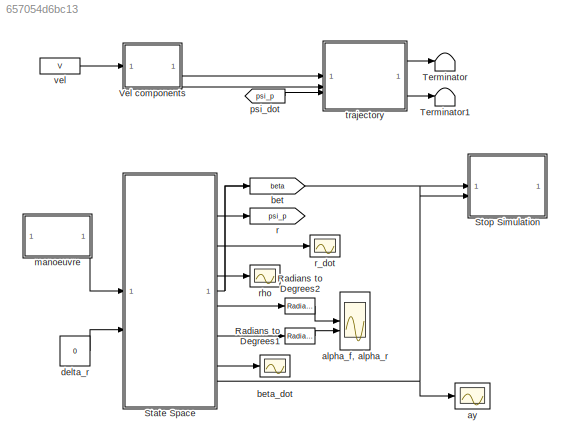
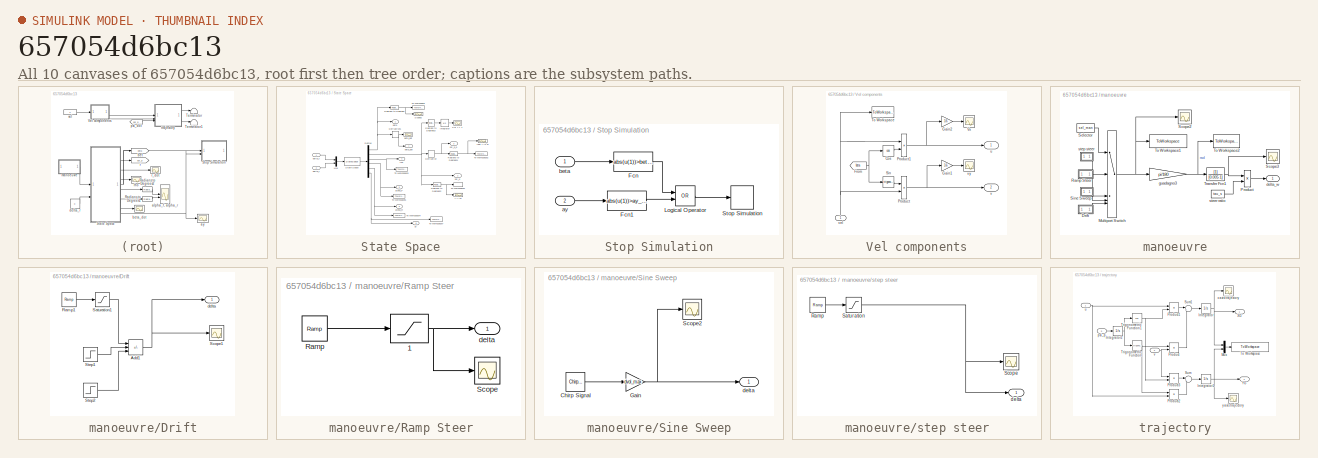
[diagram: thumbnail index - all 10 canvases of the model, root first then tree order]
MODEL slx_657054d6bc13
KIND model
CONFIG AbsTol = auto
CONFIG EnableMultiTasking = on
CONFIG FixedStep = 0.0001
CONFIG MaxStep = auto
CONFIG MinStep = auto
CONFIG RelTol = 1e-3
CONFIG SampleTimeConstraint = Unconstrained
CONFIG SolverName = ode4
CONFIG StartTime = 0.0
CONFIG StopTime = t_end_sim
BLOCK [Reference] Radians to Degrees1  REF=simulink_extras/Transformations/Radians
to Degrees
  SourceBlock = simulink_extras/Transformations/Radians\nto Degrees
  SourceType = RadiansToDegrees
BLOCK [Reference] Radians to Degrees2  REF=simulink_extras/Transformations/Radians
to Degrees
  SourceBlock = simulink_extras/Transformations/Radians\nto Degrees
  SourceType = RadiansToDegrees
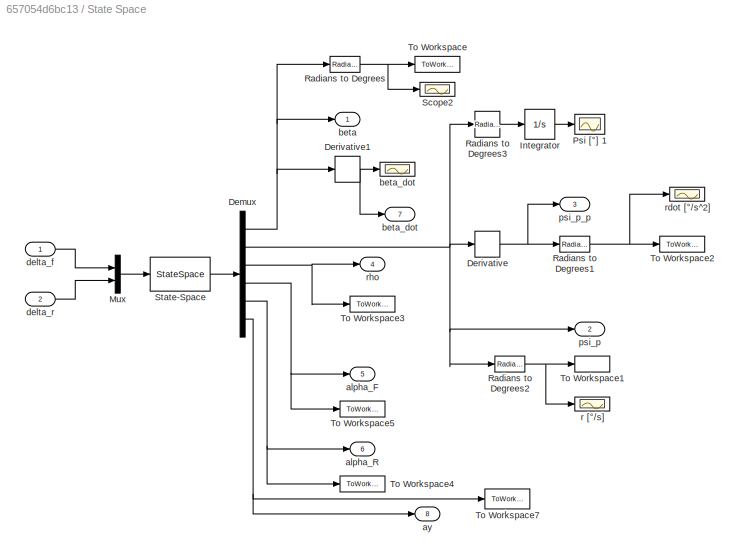
BLOCK [SubSystem] State Space
BLOCK [Demux] State Space/Demux
  Outputs = 6
BLOCK [Derivative] State Space/Derivative
BLOCK [Derivative] State Space/Derivative1
BLOCK [Integrator] State Space/Integrator
BLOCK [Mux] State Space/Mux
  DisplayOption = bar
  Inputs = 2
BLOCK [Scope] State Space/Psi [°] 1
  Floating = off
  NumInputPorts = 1
  ScopeSpecificationString = Simulink.scopes.TimeScopeBlockCfg('CurrentConfiguration', extmgr.ConfigurationSet(extmgr.Configuration('Core','General UI',true),extmgr.Configuration('Core','Source UI',true),extmgr.Configuration('Sources','WiredSimulink',true,'DataLogging',true,'DataLoggingVariableName','Psi','DataLoggingSaveFormat','Array','DataLoggingDecimation','1','DataLoggingDecimateData',true),extmgr.Configuration('Visuals'...<+1708ch>
BLOCK [Reference] State Space/Radians to Degrees  REF=simulink_extras/Transformations/Radians
to Degrees
  SourceBlock = simulink_extras/Transformations/Radians\nto Degrees
  SourceType = RadiansToDegrees
BLOCK [Reference] State Space/Radians to Degrees1  REF=simulink_extras/Transformations/Radians
to Degrees
  SourceBlock = simulink_extras/Transformations/Radians\nto Degrees
  SourceType = RadiansToDegrees
BLOCK [Reference] State Space/Radians to Degrees2  REF=simulink_extras/Transformations/Radians
to Degrees
  SourceBlock = simulink_extras/Transformations/Radians\nto Degrees
  SourceType = RadiansToDegrees
BLOCK [Reference] State Space/Radians to Degrees3  REF=simulink_extras/Transformations/Radians
to Degrees
  SourceBlock = simulink_extras/Transformations/Radians\nto Degrees
  SourceType = RadiansToDegrees
BLOCK [Scope] State Space/Scope2
  Floating = off
  NumInputPorts = 1
  ScopeSpecificationString = Simulink.scopes.TimeScopeBlockCfg('CurrentConfiguration', extmgr.ConfigurationSet(extmgr.Configuration('Core','General UI',true),extmgr.Configuration('Core','Source UI',true),extmgr.Configuration('Sources','WiredSimulink',true,'DataLoggingVariableName','Beta','DataLogging',true,'DataLoggingSaveFormat','Array'),extmgr.Configuration('Visuals','Time Domain',true,'SerializedDisplays',{struct('MinYLimR...<+1472ch>
BLOCK [StateSpace] State Space/State-Space
  A = A_sim
  B = B_sim
  C = C_sim
  D = D_sim
  InitialCondition = 0
BLOCK [ToWorkspace] State Space/To Workspace
  FixptAsFi = on
  MaxDataPoints = inf
  SampleTime = -1
  SaveFormat = Timeseries
  VariableName = beta
BLOCK [ToWorkspace] State Space/To Workspace1
  FixptAsFi = on
  MaxDataPoints = inf
  SampleTime = -1
  SaveFormat = Timeseries
  VariableName = r
BLOCK [ToWorkspace] State Space/To Workspace2
  FixptAsFi = on
  MaxDataPoints = inf
  SampleTime = -1
  SaveFormat = Timeseries
  VariableName = rdot
BLOCK [ToWorkspace] State Space/To Workspace3
  FixptAsFi = on
  MaxDataPoints = inf
  SampleTime = -1
  SaveFormat = Timeseries
  VariableName = ro
BLOCK [ToWorkspace] State Space/To Workspace4
  FixptAsFi = on
  MaxDataPoints = inf
  SampleTime = -1
  SaveFormat = Timeseries
  VariableName = alfaR
BLOCK [ToWorkspace] State Space/To Workspace5
  FixptAsFi = on
  MaxDataPoints = inf
  SampleTime = -1
  SaveFormat = Timeseries
  VariableName = alfaF
BLOCK [ToWorkspace] State Space/To Workspace7
  FixptAsFi = on
  MaxDataPoints = inf
  SampleTime = -1
  Save2DSignal = 2-D array (concatenate along first dimension)
  SaveFormat = Timeseries
  VariableName = ay
BLOCK [Outport] State Space/alpha_F
  Port = 5
  VectorParamsAs1DForOutWhenUnconnected = off
BLOCK [Outport] State Space/alpha_R
  Port = 6
  VectorParamsAs1DForOutWhenUnconnected = off
BLOCK [Outport] State Space/ay
  Port = 8
  VectorParamsAs1DForOutWhenUnconnected = off
BLOCK [Outport] State Space/beta
  VectorParamsAs1DForOutWhenUnconnected = off
BLOCK [Scope] State Space/beta_dot
  Floating = off
  NumInputPorts = 1
  ScopeSpecificationString = Simulink.scopes.TimeScopeBlockCfg('CurrentConfiguration', extmgr.ConfigurationSet(extmgr.Configuration('Core','General UI',true),extmgr.Configuration('Core','Source UI',true),extmgr.Configuration('Sources','WiredSimulink',true,'DataLoggingVariableName','beta_dot','DataLogging',true,'DataLoggingSaveFormat','Array'),extmgr.Configuration('Visuals','Time Domain',true,'SerializedDisplays',{struct('MinY...<+1471ch>
BLOCK [Outport] State Space/beta_dot 
  Port = 7
  VectorParamsAs1DForOutWhenUnconnected = off
BLOCK [Inport] State Space/delta_f
BLOCK [Inport] State Space/delta_r
  Port = 2
BLOCK [Outport] State Space/psi_p
  Port = 2
  VectorParamsAs1DForOutWhenUnconnected = off
BLOCK [Outport] State Space/psi_p_p
  Port = 3
  VectorParamsAs1DForOutWhenUnconnected = off
BLOCK [Scope] State Space/r [°//s]
  Floating = off
  NumInputPorts = 1
  ScopeSpecificationString = Simulink.scopes.TimeScopeBlockCfg('CurrentConfiguration', extmgr.ConfigurationSet(extmgr.Configuration('Core','General UI',true),extmgr.Configuration('Core','Source UI',true),extmgr.Configuration('Sources','WiredSimulink',true,'DataLoggingVariableName','psi_dot','DataLogging',true,'DataLoggingSaveFormat','Array'),extmgr.Configuration('Visuals','Time Domain',true,'SerializedDisplays',{struct('MinYL...<+1465ch>
BLOCK [Scope] State Space/rdot [°//s^2]
  Floating = off
  NumInputPorts = 1
  ScopeSpecificationString = Simulink.scopes.TimeScopeBlockCfg('CurrentConfiguration', extmgr.ConfigurationSet(extmgr.Configuration('Core','General UI',true),extmgr.Configuration('Core','Source UI',true),extmgr.Configuration('Sources','WiredSimulink',true,'DataLoggingVariableName','ScopeData4'),extmgr.Configuration('Visuals','Time Domain',true,'SerializedDisplays',{struct('MinYLimReal','-6.92357','MaxYLimReal','62.31216','YLa...<+1418ch>
BLOCK [Outport] State Space/rho
  Port = 4
  VectorParamsAs1DForOutWhenUnconnected = off
BLOCK [SubSystem] Stop Simulation
BLOCK [Fcn] Stop Simulation/Fcn
  Expr = abs(u(1))>beta_max
BLOCK [Fcn] Stop Simulation/Fcn1
  Expr = abs(u(1))>ay_max
BLOCK [Logic] Stop Simulation/Logical Operator
  AllPortsSameDT = off
  Operator = OR
  OutDataTypeStr = boolean
BLOCK [Stop] Stop Simulation/Stop Simulation
BLOCK [Inport] Stop Simulation/ay
  Port = 2
BLOCK [Inport] Stop Simulation/beta
BLOCK [Terminator] Terminator
BLOCK [Terminator] Terminator1
BLOCK [SubSystem] Vel components
BLOCK [Trigonometry] Vel components/Cos
  Operator = cos
BLOCK [From] Vel components/From
  GotoTag = beta
  TagVisibility = global
BLOCK [Gain] Vel components/Gain1
  Gain = 3.6
BLOCK [Gain] Vel components/Gain2
  Gain = 3.6
BLOCK [Product] Vel components/Product
BLOCK [Product] Vel components/Product1
BLOCK [Trigonometry] Vel components/Sin
BLOCK [ToWorkspace] Vel components/To Workspace
  FixptAsFi = on
  MaxDataPoints = inf
  SampleTime = -1
  SaveFormat = Timeseries
  VariableName = simout
BLOCK [Scope] Vel components/Vx
  Floating = off
  NumInputPorts = 1
  ScopeSpecificationString = Simulink.scopes.TimeScopeBlockCfg('CurrentConfiguration', extmgr.ConfigurationSet(extmgr.Configuration('Core','General UI',true),extmgr.Configuration('Core','Source UI',true),extmgr.Configuration('Sources','WiredSimulink',true,'DataLoggingVariableName','ScopeData3'),extmgr.Configuration('Visuals','Time Domain',true,'SerializedDisplays',{struct('MinYLimReal','39.99883','MaxYLimReal','40.00013','YLa...<+1395ch>
BLOCK [Outport] Vel components/u
  VectorParamsAs1DForOutWhenUnconnected = off
BLOCK [Outport] Vel components/v
  Port = 2
  VectorParamsAs1DForOutWhenUnconnected = off
BLOCK [Inport] Vel components/vel
  NameLocation = right
BLOCK [Scope] Vel components/vy
  Floating = off
  NumInputPorts = 1
  ScopeSpecificationString = Simulink.scopes.TimeScopeBlockCfg('CurrentConfiguration', extmgr.ConfigurationSet(extmgr.Configuration('Core','General UI',true),extmgr.Configuration('Core','Source UI',true),extmgr.Configuration('Sources','WiredSimulink',true,'DataLoggingVariableName','v','DataLogging',true,'DataLoggingSaveFormat','Array'),extmgr.Configuration('Visuals','Time Domain',true,'SerializedDisplays',{struct('MinYLimReal...<+1431ch>
BLOCK [Scope] alpha_f, alpha_r
  Floating = off
  NumInputPorts = 2
  ScopeSpecificationString = Simulink.scopes.TimeScopeBlockCfg('CurrentConfiguration', extmgr.ConfigurationSet(extmgr.Configuration('Core','General UI',true),extmgr.Configuration('Core','Source UI',true),extmgr.Configuration('Sources','WiredSimulink',true,'DataLoggingVariableName','ScopeData1'),extmgr.Configuration('Visuals','Time Domain',true,'SerializedDisplays',{struct('MinYLimReal','-0.06568','MaxYLimReal','0.59113','YLab...<+1384ch>
BLOCK [Scope] ay 
  Floating = off
  NumInputPorts = 1
  ScopeSpecificationString = Simulink.scopes.TimeScopeBlockCfg('CurrentConfiguration', extmgr.ConfigurationSet(extmgr.Configuration('Core','General UI',true),extmgr.Configuration('Core','Source UI',true),extmgr.Configuration('Sources','WiredSimulink',true,'DataLoggingVariableName','a_y','DataLogging',true,'DataLoggingSaveFormat','Array'),extmgr.Configuration('Visuals','Time Domain',true,'SerializedDisplays',{struct('MinYLimRe...<+1474ch>
BLOCK [Goto] bet
  GotoTag = beta
  TagVisibility = global
BLOCK [Scope] beta_dot
  Floating = off
  NumInputPorts = 1
  ScopeSpecificationString = Simulink.scopes.TimeScopeBlockCfg('CurrentConfiguration', extmgr.ConfigurationSet(extmgr.Configuration('Core','General UI',true),extmgr.Configuration('Core','Source UI',true),extmgr.Configuration('Sources','WiredSimulink',true,'DataLoggingVariableName','ScopeData1'),extmgr.Configuration('Visuals','Time Domain',true,'SerializedDisplays',{struct('MinYLimReal','-0.01179','MaxYLimReal','0.06073','YLab...<+1397ch>
BLOCK [Constant] delta_r
  Value = 0
BLOCK [SubSystem] manoeuvre
BLOCK [SubSystem] manoeuvre/Drift
BLOCK [Sum] manoeuvre/Drift/Add1
  IconShape = rectangular
  Inputs = +-+
BLOCK [Reference] manoeuvre/Drift/Ramp1  REF=simulink/Sources/Ramp
  SourceBlock = simulink/Sources/Ramp
  SourceType = Ramp
BLOCK [Saturate] manoeuvre/Drift/Saturation1
  LowerLimit = 0
  UpperLimit = dvol_drift1
BLOCK [Scope] manoeuvre/Drift/Scope1
  Floating = off
  NumInputPorts = 1
  ScopeSpecificationString = Simulink.scopes.TimeScopeBlockCfg('CurrentConfiguration', extmgr.ConfigurationSet(extmgr.Configuration('Core','General UI',true),extmgr.Configuration('Core','Source UI',true),extmgr.Configuration('Sources','WiredSimulink',true,'DataLoggingVariableName','ScopeData3'),extmgr.Configuration('Visuals','Time Domain',true,'SerializedDisplays',{struct('MinYLimReal','-1.00000','MaxYLimReal','1.00000','YLab...<+1363ch>
BLOCK [Step] manoeuvre/Drift/Step1
  After = dvol_drift2
  SampleTime = 0
  Time = t_drift_cs_1
BLOCK [Step] manoeuvre/Drift/Step2
  After = dvol_drift3
  SampleTime = 0
  Time = t_drift_cs_2
BLOCK [Outport] manoeuvre/Drift/delta
  VectorParamsAs1DForOutWhenUnconnected = off
BLOCK [MultiPortSwitch] manoeuvre/Multiport Switch
  InputSameDT = off
  Inputs = 4
  SaturateOnIntegerOverflow = off
BLOCK [Product] manoeuvre/Product
  Inputs = */
  RndMeth = Zero
BLOCK [SubSystem] manoeuvre/Ramp Steer
BLOCK [Saturate] manoeuvre/Ramp Steer/  1
  LowerLimit = -delta_vol_max_ramp
  UpperLimit = delta_vol_max_ramp
BLOCK [Reference] manoeuvre/Ramp Steer/Ramp  REF=simulink/Sources/Ramp
  SourceBlock = simulink/Sources/Ramp
  SourceType = Ramp
BLOCK [Scope] manoeuvre/Ramp Steer/Scope
  Floating = off
  NumInputPorts = 1
  ScopeSpecificationString = Simulink.scopes.TimeScopeBlockCfg('CurrentConfiguration', extmgr.ConfigurationSet(extmgr.Configuration('Core','General UI',true),extmgr.Configuration('Core','Source UI',true),extmgr.Configuration('Sources','WiredSimulink',true,'DataLoggingVariableName','ScopeData1'),extmgr.Configuration('Visuals','Time Domain',true,'SerializedDisplays',{struct('MinYLimReal','-1.25','MaxYLimReal','11.25','YLabelRea...<+1379ch>
BLOCK [Outport] manoeuvre/Ramp Steer/delta
  VectorParamsAs1DForOutWhenUnconnected = off
BLOCK [Scope] manoeuvre/Scope2
  Floating = off
  NumInputPorts = 1
  ScopeSpecificationString = Simulink.scopes.TimeScopeBlockCfg('CurrentConfiguration', extmgr.ConfigurationSet(extmgr.Configuration('Core','General UI',true),extmgr.Configuration('Core','Source UI',true),extmgr.Configuration('Sources','WiredSimulink',true,'DataLoggingVariableName','delta_s','DataLogging',true,'DataLoggingSaveFormat','Array'),extmgr.Configuration('Visuals','Time Domain',true,'SerializedDisplays',{struct('MinYL...<+1485ch>
BLOCK [Scope] manoeuvre/Scope3
  Floating = off
  NumInputPorts = 1
  ScopeSpecificationString = Simulink.scopes.TimeScopeBlockCfg('CurrentConfiguration', extmgr.ConfigurationSet(extmgr.Configuration('Core','General UI',true),extmgr.Configuration('Core','Source UI',true),extmgr.Configuration('Sources','WiredSimulink',true,'DataLoggingVariableName','delta_rad','DataLogging',true,'DataLoggingSaveFormat','Array'),extmgr.Configuration('Visuals','Time Domain',true,'SerializedDisplays',{struct('Min...<+1451ch>
BLOCK [Constant] manoeuvre/Selector
  Value = sel_man
BLOCK [SubSystem] manoeuvre/Sine Sweep
BLOCK [Reference] manoeuvre/Sine Sweep/Chirp Signal  REF=simulink/Sources/Chirp Signal
  SourceBlock = simulink/Sources/Chirp Signal
  SourceType = chirp
BLOCK [Gain] manoeuvre/Sine Sweep/Gain
  Gain = dvol_max
BLOCK [Scope] manoeuvre/Sine Sweep/Scope2
  Floating = off
  NumInputPorts = 1
  ScopeSpecificationString = Simulink.scopes.TimeScopeBlockCfg('CurrentConfiguration', extmgr.ConfigurationSet(extmgr.Configuration('Core','General UI',true),extmgr.Configuration('Core','Source UI',true),extmgr.Configuration('Sources','WiredSimulink',true,'DataLoggingVariableName','ScopeData2'),extmgr.Configuration('Visuals','Time Domain',true,'SerializedDisplays',{struct('MinYLimReal','-25.00000','MaxYLimReal','25.00000','YL...<+1398ch>
BLOCK [Outport] manoeuvre/Sine Sweep/delta
  InitialOutput = 0
  NameLocation = top
  VectorParamsAs1DForOutWhenUnconnected = off
BLOCK [ToWorkspace] manoeuvre/To Workspace1
  FixptAsFi = on
  MaxDataPoints = inf
  SampleTime = -1
  SaveFormat = Timeseries
  VariableName = delta_steer
BLOCK [ToWorkspace] manoeuvre/To Workspace2
  FixptAsFi = on
  MaxDataPoints = inf
  SampleTime = -1
  SaveFormat = Timeseries
  VariableName = delta_radians
BLOCK [TransferFcn] manoeuvre/Transfer Fcn1
  Denominator = [0.005 1]
BLOCK [Outport] manoeuvre/delta_w
  VectorParamsAs1DForOutWhenUnconnected = off
BLOCK [Gain] manoeuvre/guadagno3
  Gain = pi/180
  OutDataTypeStr = Inherit: Same as input
  ParamDataTypeStr = Inherit: Same as input
  SaturateOnIntegerOverflow = on
BLOCK [Constant] manoeuvre/steer ratio 
  Value = tau_s
BLOCK [SubSystem] manoeuvre/step steer
BLOCK [Reference] manoeuvre/step steer/Ramp  REF=simulink/Sources/Ramp
  SourceBlock = simulink/Sources/Ramp
  SourceType = Ramp
BLOCK [Saturate] manoeuvre/step steer/Saturation
  LowerLimit = 0
  UpperLimit = dvol_max
BLOCK [Scope] manoeuvre/step steer/Scope
  Floating = off
  NumInputPorts = 1
  ScopeSpecificationString = Simulink.scopes.TimeScopeBlockCfg('CurrentConfiguration', extmgr.ConfigurationSet(extmgr.Configuration('Core','General UI',true),extmgr.Configuration('Core','Source UI',true),extmgr.Configuration('Sources','WiredSimulink',true,'DataLoggingVariableName','ScopeData2'),extmgr.Configuration('Visuals','Time Domain',true,'SerializedDisplays',{struct('MinYLimReal','-1.25','MaxYLimReal','11.25','YLabelRea...<+1386ch>
BLOCK [Outport] manoeuvre/step steer/delta
  VectorParamsAs1DForOutWhenUnconnected = off
BLOCK [From] psi_dot
  GotoTag = psi_p
  TagVisibility = global
BLOCK [Goto] r
  GotoTag = psi_p
  TagVisibility = global
BLOCK [Scope] r_dot
  Floating = off
  NumInputPorts = 1
  ScopeSpecificationString = Simulink.scopes.TimeScopeBlockCfg('CurrentConfiguration', extmgr.ConfigurationSet(extmgr.Configuration('Core','General UI',true),extmgr.Configuration('Core','Source UI',true),extmgr.Configuration('Sources','WiredSimulink',true),extmgr.Configuration('Visuals','Time Domain',true,'SerializedDisplays',{struct('MinYLimReal','-0.07481','MaxYLimReal','0.67331','YLabelReal','','MinYLimMag','0.00000','MaxY...<+1333ch>
BLOCK [Scope] rho
  Floating = off
  NumInputPorts = 1
  ScopeSpecificationString = Simulink.scopes.TimeScopeBlockCfg('CurrentConfiguration', extmgr.ConfigurationSet(extmgr.Configuration('Core','General UI',true),extmgr.Configuration('Core','Source UI',true),extmgr.Configuration('Sources','WiredSimulink',true,'DataLoggingVariableName','ScopeData2'),extmgr.Configuration('Visuals','Time Domain',true,'SerializedDisplays',{struct('MinYLimReal','0.00098','MaxYLimReal','0.00141','YLabe...<+1443ch>
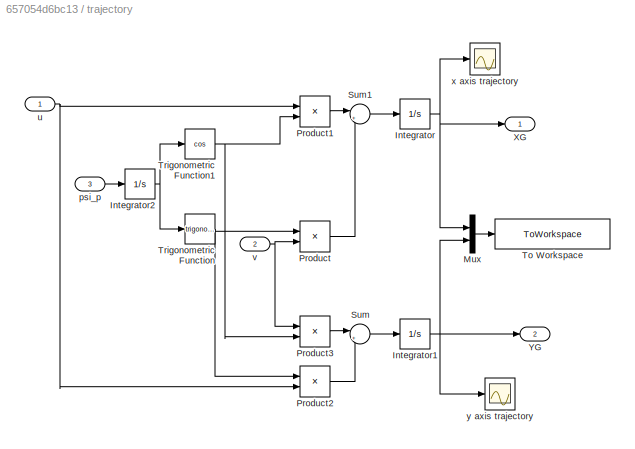
BLOCK [SubSystem] trajectory
BLOCK [Integrator] trajectory/Integrator
BLOCK [Integrator] trajectory/Integrator1
BLOCK [Integrator] trajectory/Integrator2
BLOCK [Mux] trajectory/Mux
  DisplayOption = bar
  Inputs = 2
BLOCK [Product] trajectory/Product
  InputSameDT = on
  OutDataTypeStr = Inherit: Same as first input
  SaturateOnIntegerOverflow = on
BLOCK [Product] trajectory/Product1
  InputSameDT = on
  OutDataTypeStr = Inherit: Same as first input
  SaturateOnIntegerOverflow = on
BLOCK [Product] trajectory/Product2
  InputSameDT = on
  OutDataTypeStr = Inherit: Same as first input
  SaturateOnIntegerOverflow = on
BLOCK [Product] trajectory/Product3
  InputSameDT = on
  OutDataTypeStr = Inherit: Same as first input
  SaturateOnIntegerOverflow = on
BLOCK [Sum] trajectory/Sum
  InputSameDT = on
  Inputs = |++
  OutDataTypeStr = Inherit: Same as first input
  SaturateOnIntegerOverflow = on
BLOCK [Sum] trajectory/Sum1
  InputSameDT = on
  Inputs = |+-
  OutDataTypeStr = Inherit: Same as first input
  SaturateOnIntegerOverflow = on
BLOCK [ToWorkspace] trajectory/To Workspace
  InitFcn = ParentName = get_param(gcb,'Parent');                                              \ncont = max(find(ParentName=='/'));                                                 \nset_param(gcb,'VariableName',strcat('Var_',ParentName(cont+1:length(ParentName))));\nclear ParentName cont
  MaxDataPoints = inf
  SampleTime = -1
  Save2DSignal = 2-D array (concatenate along first dimension)
  VariableName = Var_trajectory
BLOCK [Trigonometry] trajectory/Trigonometric Function
BLOCK [Trigonometry] trajectory/Trigonometric Function1
  Operator = cos
BLOCK [Outport] trajectory/XG
  VectorParamsAs1DForOutWhenUnconnected = off
BLOCK [Outport] trajectory/YG
  Port = 2
  VectorParamsAs1DForOutWhenUnconnected = off
BLOCK [Inport] trajectory/psi_p
  Port = 3
BLOCK [Inport] trajectory/u
BLOCK [Inport] trajectory/v
  Port = 2
BLOCK [Scope] trajectory/x axis trajectory
  Floating = off
  NumInputPorts = 1
  ScopeSpecificationString = Simulink.scopes.TimeScopeBlockCfg('CurrentConfiguration', extmgr.ConfigurationSet(extmgr.Configuration('Core','General UI',true),extmgr.Configuration('Core','Source UI',true),extmgr.Configuration('Sources','WiredSimulink',true,'DataLoggingVariableName','x_traiettoria','DataLoggingSaveFormat','Array','DataLoggingDecimation','1','DataLoggingDecimateData',true),extmgr.Configuration('Visuals','Time Do...<+1733ch>
BLOCK [Scope] trajectory/y axis trajectory
  Floating = off
  NumInputPorts = 1
  ScopeSpecificationString = Simulink.scopes.TimeScopeBlockCfg('CurrentConfiguration', extmgr.ConfigurationSet(extmgr.Configuration('Core','General UI',true),extmgr.Configuration('Core','Source UI',true),extmgr.Configuration('Sources','WiredSimulink',true,'DataLoggingVariableName','y_traiettoria','DataLoggingSaveFormat','Array','DataLoggingDecimation','1','DataLoggingDecimateData',true),extmgr.Configuration('Visuals','Time Do...<+1669ch>
BLOCK [Constant] vel
  Value = V
LINE Radians to Degrees1:1 -> alpha_f, alpha_r:2
LINE Radians to Degrees2:1 -> alpha_f, alpha_r:1
NET State Space/Demux:1 -> State Space/Derivative1:1, State Space/Radians to Degrees:1, State Space/beta:1
NET State Space/Demux:2 -> State Space/Derivative:1, State Space/Radians to Degrees2:1, State Space/Radians to Degrees3:1, State Space/psi_p:1
NET State Space/Demux:3 -> State Space/To Workspace3:1, State Space/rho:1
NET State Space/Demux:4 -> State Space/To Workspace5:1, State Space/alpha_F:1
NET State Space/Demux:5 -> State Space/To Workspace4:1, State Space/alpha_R:1
NET State Space/Demux:6 -> State Space/To Workspace7:1, State Space/ay:1
NET State Space/Derivative1:1 -> State Space/beta_dot :1, State Space/beta_dot:1
NET State Space/Derivative:1 -> State Space/Radians to Degrees1:1, State Space/psi_p_p:1
LINE State Space/Integrator:1 -> State Space/Psi [°] 1:1
LINE State Space/Mux:1 -> State Space/State-Space:1
NET State Space/Radians to Degrees1:1 -> State Space/To Workspace2:1, State Space/rdot [°//s^2]:1
NET State Space/Radians to Degrees2:1 -> State Space/To Workspace1:1, State Space/r [°//s]:1
LINE State Space/Radians to Degrees3:1 -> State Space/Integrator:1
NET State Space/Radians to Degrees:1 -> State Space/Scope2:1, State Space/To Workspace:1
LINE State Space/State-Space:1 -> State Space/Demux:1
LINE State Space/delta_f:1 -> State Space/Mux:1
LINE State Space/delta_r:1 -> State Space/Mux:2
NET State Space:1 -> Stop Simulation:1, bet:1
LINE State Space:2 -> r:1
LINE State Space:3 -> r_dot:1
LINE State Space:4 -> rho:1
LINE State Space:5 -> Radians to Degrees2:1
LINE State Space:6 -> Radians to Degrees1:1
LINE State Space:7 -> beta_dot:1
NET State Space:8 -> Stop Simulation:2, ay :1
LINE Stop Simulation/Fcn1:1 -> Stop Simulation/Logical Operator:2
LINE Stop Simulation/Fcn:1 -> Stop Simulation/Logical Operator:1
LINE Stop Simulation/Logical Operator:1 -> Stop Simulation/Stop Simulation:1
LINE Stop Simulation/ay:1 -> Stop Simulation/Fcn1:1
LINE Stop Simulation/beta:1 -> Stop Simulation/Fcn:1
LINE Vel components/Cos:1 -> Vel components/Product1:2
NET Vel components/From:1 -> Vel components/Cos:1, Vel components/Sin:1
LINE Vel components/Gain1:1 -> Vel components/vy:1
LINE Vel components/Gain2:1 -> Vel components/Vx:1
NET Vel components/Product1:1 -> Vel components/Gain2:1, Vel components/u:1
NET Vel components/Product:1 -> Vel components/Gain1:1, Vel components/v:1
LINE Vel components/Sin:1 -> Vel components/Product:1
NET Vel components/vel:1 -> Vel components/Product1:1, Vel components/Product:2, Vel components/To Workspace:1
LINE Vel components:1 -> trajectory:1
LINE Vel components:2 -> trajectory:2
LINE delta_r:1 -> State Space:2
NET manoeuvre/Drift/Add1:1 -> manoeuvre/Drift/Scope1:1, manoeuvre/Drift/delta:1
LINE manoeuvre/Drift/Ramp1:1 -> manoeuvre/Drift/Saturation1:1
LINE manoeuvre/Drift/Saturation1:1 -> manoeuvre/Drift/Add1:1
LINE manoeuvre/Drift/Step1:1 -> manoeuvre/Drift/Add1:2
LINE manoeuvre/Drift/Step2:1 -> manoeuvre/Drift/Add1:3
LINE manoeuvre/Drift:1 -> manoeuvre/Multiport Switch:5
NET manoeuvre/Multiport Switch:1 -> manoeuvre/Scope2:1, manoeuvre/To Workspace1:1, manoeuvre/guadagno3:1
LINE manoeuvre/Product:1 -> manoeuvre/delta_w:1
NET manoeuvre/Ramp Steer/  1:1 -> manoeuvre/Ramp Steer/Scope:1, manoeuvre/Ramp Steer/delta:1
LINE manoeuvre/Ramp Steer/Ramp:1 -> manoeuvre/Ramp Steer/  1:1
LINE manoeuvre/Ramp Steer:1 -> manoeuvre/Multiport Switch:3
LINE manoeuvre/Selector:1 -> manoeuvre/Multiport Switch:1
LINE manoeuvre/Sine Sweep/Chirp Signal:1 -> manoeuvre/Sine Sweep/Gain:1
NET manoeuvre/Sine Sweep/Gain:1 -> manoeuvre/Sine Sweep/Scope2:1, manoeuvre/Sine Sweep/delta:1
LINE manoeuvre/Sine Sweep:1 -> manoeuvre/Multiport Switch:4
NET manoeuvre/Transfer Fcn1:1 -> manoeuvre/Product:1, manoeuvre/Scope3:1
NET manoeuvre/guadagno3:1 -> manoeuvre/To Workspace2:1, manoeuvre/Transfer Fcn1:1
LINE manoeuvre/steer ratio :1 -> manoeuvre/Product:2
LINE manoeuvre/step steer/Ramp:1 -> manoeuvre/step steer/Saturation:1
NET manoeuvre/step steer/Saturation:1 -> manoeuvre/step steer/Scope:1, manoeuvre/step steer/delta:1
LINE manoeuvre/step steer:1 -> manoeuvre/Multiport Switch:2
LINE manoeuvre:1 -> State Space:1
LINE psi_dot:1 -> trajectory:3
NET trajectory/Integrator1:1 -> trajectory/Mux:2, trajectory/YG:1, trajectory/y axis trajectory:1
NET trajectory/Integrator2:1 -> trajectory/Trigonometric Function1:1, trajectory/Trigonometric Function:1
NET trajectory/Integrator:1 -> trajectory/Mux:1, trajectory/XG:1, trajectory/x axis trajectory:1
LINE trajectory/Mux:1 -> trajectory/To Workspace:1
LINE trajectory/Product1:1 -> trajectory/Sum1:1
LINE trajectory/Product2:1 -> trajectory/Sum:2
LINE trajectory/Product3:1 -> trajectory/Sum:1
LINE trajectory/Product:1 -> trajectory/Sum1:2
LINE trajectory/Sum1:1 -> trajectory/Integrator:1
LINE trajectory/Sum:1 -> trajectory/Integrator1:1
NET trajectory/Trigonometric Function1:1 -> trajectory/Product1:2, trajectory/Product3:2
NET trajectory/Trigonometric Function:1 -> trajectory/Product2:1, trajectory/Product:1
LINE trajectory/psi_p:1 -> trajectory/Integrator2:1
NET trajectory/u:1 -> trajectory/Product1:1, trajectory/Product2:2
NET trajectory/v:1 -> trajectory/Product3:1, trajectory/Product:2
LINE trajectory:1 -> Terminator:1
LINE trajectory:2 -> Terminator1:1
LINE vel:1 -> Vel components:1
note: NET lines group one-source signal fan-out (src -> all destinations, sorted); 1:1 wires keep LINE
